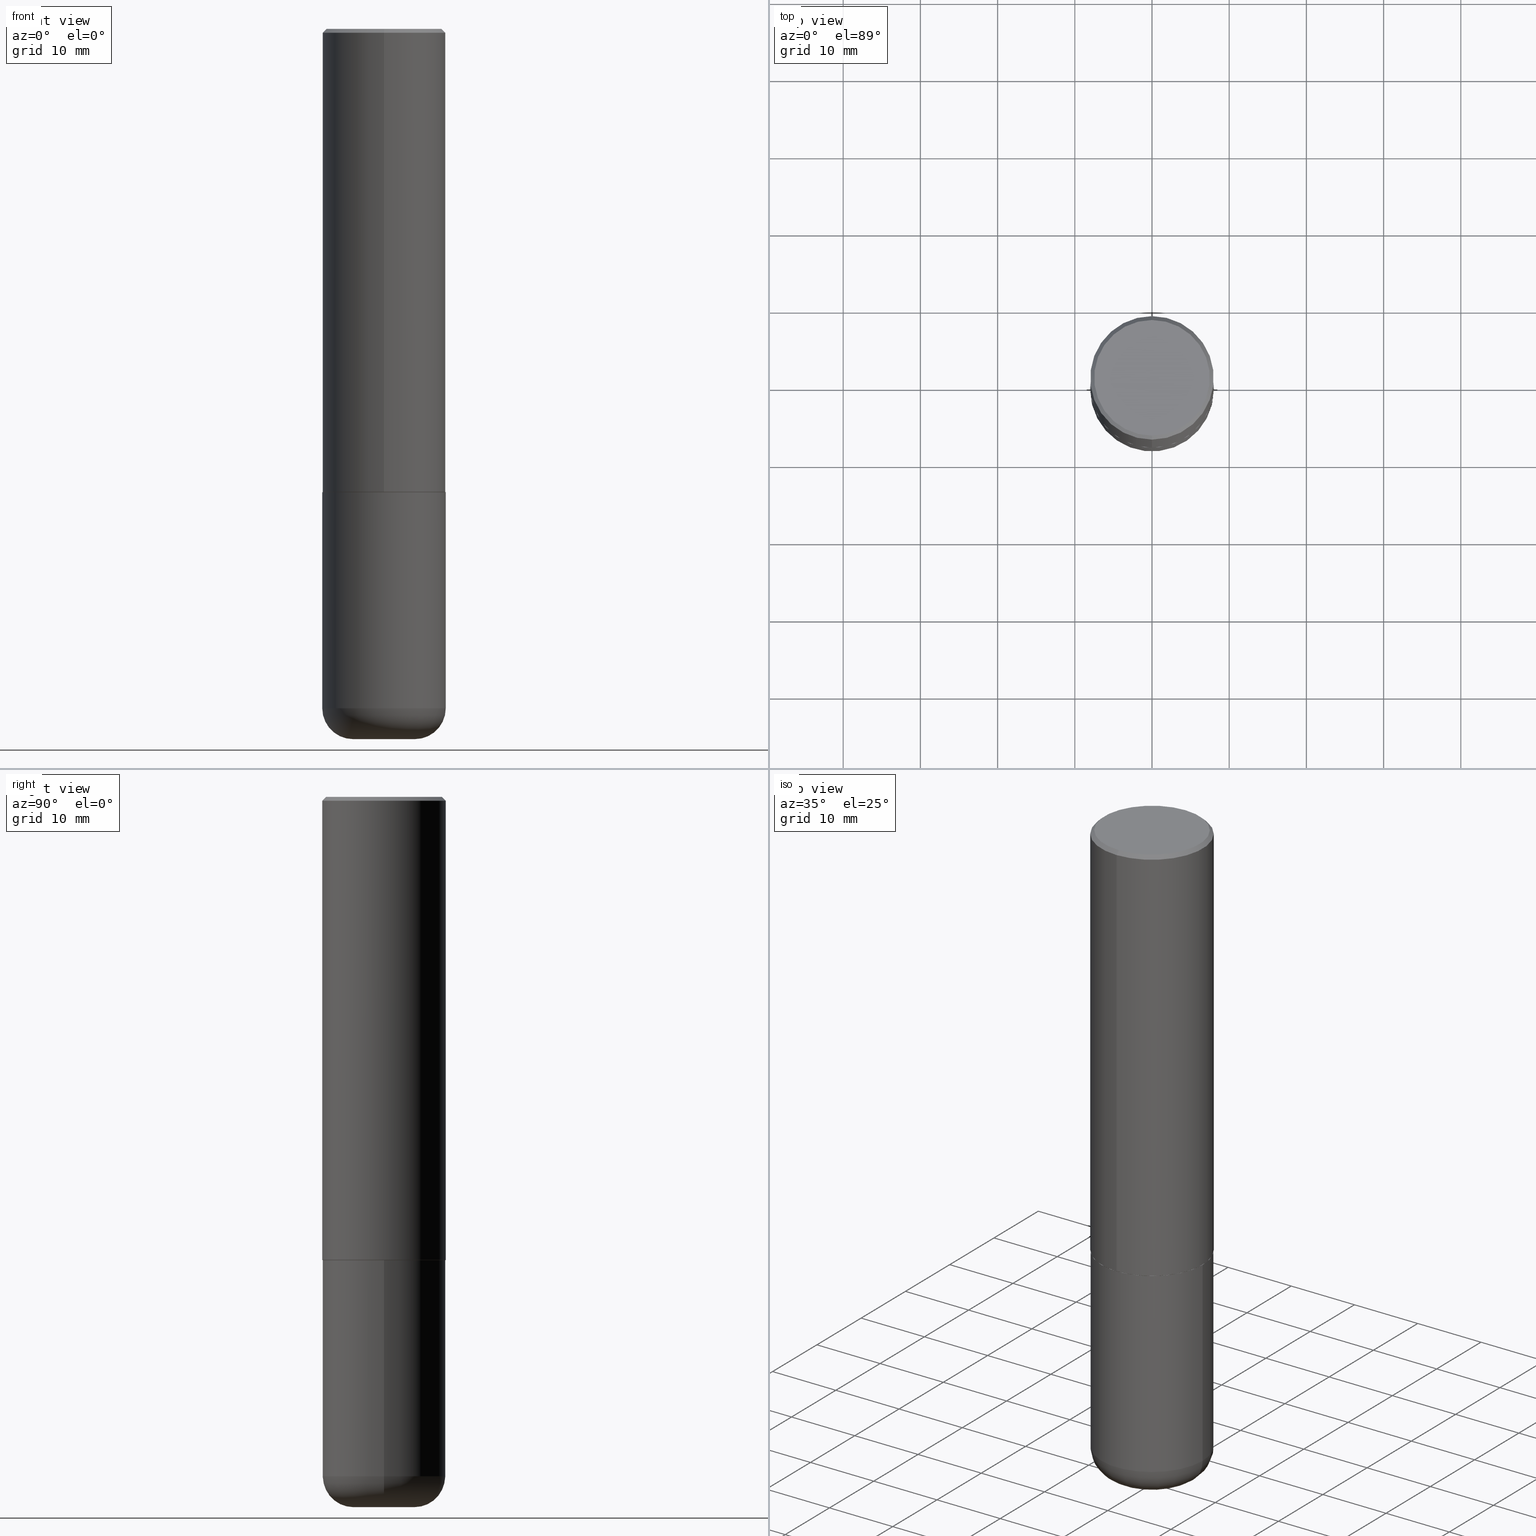
[diagram: canonical four-view strip — front | top / right | iso, engineering-drawing reading convention]
A machine part, canonical four-view strip (front | top / right | iso — engineering-drawing reading convention). The complete STEP part file that produces these views, byte-faithful:
ISO-10303-21;
HEADER;
FILE_DESCRIPTION (( 'STEP AP203' ),
    '1' );
FILE_NAME ('45182.STEP',
    '2024-03-04T16:22:10',
    ( '' ),
    ( '' ),
    'SwSTEP 2.0',
    'SolidWorks 2023',
    '' );
FILE_SCHEMA (( 'CONFIG_CONTROL_DESIGN' ));
ENDSEC;

DATA;
#1 = MANIFOLD_SOLID_BREP ( 'Body-Move/Copy2[2]', #44 ) ;
#2 = FACE_OUTER_BOUND ( 'NONE', #407, .T. ) ;
#3 = VECTOR ( 'NONE', #214, 39.37007874015748143 ) ;
#4 = LOCAL_TIME ( 11, 22, 10.00000000000000000, #334 ) ;
#5 = CARTESIAN_POINT ( 'NONE',  ( -2.092108864420428426E-15, -0.2949500000000001565, 8.537362456613256939E-16 ) ) ;
#6 = EDGE_CURVE ( 'NONE', #140, #56, #167, .T. ) ;
#7 = LINE ( 'NONE', #360, #264 ) ;
#8 = AXIS2_PLACEMENT_3D ( 'NONE', #24, #405, #15 ) ;
#9 = CARTESIAN_POINT ( 'NONE',  ( 8.857488016002565597E-29, -1.264614540928987357E-14, -3.622000000000000330 ) ) ;
#10 = CYLINDRICAL_SURFACE ( 'NONE', #314, 0.3149500000000000077 ) ;
#11 = VERTEX_POINT ( 'NONE', #57 ) ;
#12 = ADVANCED_FACE ( 'NONE', ( #184 ), #278, .T. ) ;
#13 =( NAMED_UNIT ( * ) SI_UNIT ( $, .STERADIAN. ) SOLID_ANGLE_UNIT ( ) );
#14 = ORIENTED_EDGE ( 'NONE', *, *, #6, .T. ) ;
#15 = DIRECTION ( 'NONE',  ( 6.982962677686265922E-15, 1.000000000000000000, -3.483117034309591132E-15 ) ) ;
#16 = CIRCLE ( 'NONE', #168, 0.3149500000000000077 ) ;
#17 = DIRECTION ( 'NONE',  ( -6.982962677686265922E-15, -1.000000000000000000, 3.469564049740290009E-15 ) ) ;
#18 = COORDINATED_UNIVERSAL_TIME_OFFSET ( 5, 0, .BEHIND. ) ;
#19 = CC_DESIGN_PERSON_AND_ORGANIZATION_ASSIGNMENT ( #367, #82, ( #395 ) ) ;
#20 = DIRECTION ( 'NONE',  ( -2.446732064424175452E-29, 3.489672281144647968E-15, 1.000000000000000000 ) ) ;
#21 = ADVANCED_BREP_SHAPE_REPRESENTATION ( '45182', ( #287, #1, #389 ), #45 ) ;
#22 = PERSON_AND_ORGANIZATION_ROLE ( 'design_supplier' ) ;
#23 = ORIENTED_EDGE ( 'NONE', *, *, #390, .T. ) ;
#24 = CARTESIAN_POINT ( 'NONE',  ( 4.893464128848368385E-31, -6.979344562289319109E-17, -0.02000000000000006981 ) ) ;
#25 = VERTEX_POINT ( 'NONE', #310 ) ;
#26 = VECTOR ( 'NONE', #355, 39.37007874015748143 ) ;
#27 = APPROVAL_PERSON_ORGANIZATION ( #378, #163, #211 ) ;
#28 = COORDINATED_UNIVERSAL_TIME_OFFSET ( 5, 0, .BEHIND. ) ;
#29 = DIRECTION ( 'NONE',  ( -6.982962677686265922E-15, -1.000000000000000000, 3.489672281144648363E-15 ) ) ;
#30 = DIMENSIONAL_EXPONENTS ( 1.000000000000000000, 0.000000000000000000, 0.000000000000000000, 0.000000000000000000, 0.000000000000000000, 0.000000000000000000, 0.000000000000000000 ) ;
#31 = EDGE_CURVE ( 'NONE', #241, #165, #238, .T. ) ;
#32 = DIRECTION ( 'NONE',  ( -6.982962677686264344E-15, -1.000000000000000000, 3.489672281144647968E-15 ) ) ;
#33 = DATE_TIME_ROLE ( 'classification_date' ) ;
#34 = FACE_OUTER_BOUND ( 'NONE', #118, .T. ) ;
#35 = VECTOR ( 'NONE', #361, 39.37007874015748143 ) ;
#36 = DIRECTION ( 'NONE',  ( 2.446732064424175452E-29, -3.489672281144647968E-15, -1.000000000000000000 ) ) ;
#37 = EDGE_CURVE ( 'NONE', #51, #345, #66, .T. ) ;
#38 = ORIENTED_EDGE ( 'NONE', *, *, #390, .F. ) ;
#39 = CARTESIAN_POINT ( 'NONE',  ( 4.893464128848368385E-31, -6.979344562289319109E-17, -0.02000000000000006981 ) ) ;
#40 = CARTESIAN_POINT ( 'NONE',  ( 0.000000000000000000, 0.000000000000000000, 0.000000000000000000 ) ) ;
#41 = DIRECTION ( 'NONE',  ( -2.445468806185136597E-29, 3.491481338843145583E-15, 1.000000000000000000 ) ) ;
#42 = DIRECTION ( 'NONE',  ( -1.000000000000000000, 6.982962677686265922E-15, -4.876176775795935793E-29 ) ) ;
#43 = DIRECTION ( 'NONE',  ( 1.000000000000000000, -6.982962677686266711E-15, 0.000000000000000000 ) ) ;
#44 = CLOSED_SHELL ( 'NONE', ( #229, #218, #402, #92, #172, #12, #260, #333 ) ) ;
#45 =( GEOMETRIC_REPRESENTATION_CONTEXT ( 3 ) GLOBAL_UNCERTAINTY_ASSIGNED_CONTEXT ( ( #90 ) ) GLOBAL_UNIT_ASSIGNED_CONTEXT ( ( #376, #205, #13 ) ) REPRESENTATION_CONTEXT ( 'NONE', 'WORKASPACE' ) );
#46 = DIRECTION ( 'NONE',  ( -2.446732064424174891E-29, 3.489672281144648363E-15, 1.000000000000000000 ) ) ;
#47 = ORIENTED_EDGE ( 'NONE', *, *, #128, .F. ) ;
#48 = EDGE_CURVE ( 'NONE', #165, #241, #99, .T. ) ;
#49 = CARTESIAN_POINT ( 'NONE',  ( 0.3149500000000000077, -2.199284095337289871E-15, 1.535751875536930130E-29 ) ) ;
#50 = APPLICATION_PROTOCOL_DEFINITION ( 'international standard', 'config_control_design', 1994, #255 ) ;
#51 = VERTEX_POINT ( 'NONE', #380 ) ;
#52 = EDGE_CURVE ( 'NONE', #345, #81, #159, .T. ) ;
#53 = AXIS2_PLACEMENT_3D ( 'NONE', #9, #105, #364 ) ;
#54 = CARTESIAN_POINT ( 'NONE',  ( 4.295056925857058757E-45, -6.125861232635271610E-31, -1.755425936622887402E-16 ) ) ;
#55 = APPROVAL_DATE_TIME ( #341, #147 ) ;
#56 = VERTEX_POINT ( 'NONE', #384 ) ;
#57 = CARTESIAN_POINT ( 'NONE',  ( 0.3149500000000002298, -1.429552119375936694E-14, -3.464499999999999691 ) ) ;
#58 = CIRCLE ( 'NONE', #358, 0.1575000000000003897 ) ;
#59 = ORIENTED_EDGE ( 'NONE', *, *, #272, .T. ) ;
#60 = CIRCLE ( 'NONE', #239, 0.3139500000000000068 ) ;
#61 = EDGE_CURVE ( 'NONE', #81, #200, #331, .T. ) ;
#62 = FACE_OUTER_BOUND ( 'NONE', #368, .T. ) ;
#63 = APPROVAL_STATUS ( 'not_yet_approved' ) ;
#64 = CARTESIAN_POINT ( 'NONE',  ( 0.000000000000000000, 0.000000000000000000, 0.000000000000000000 ) ) ;
#65 = CARTESIAN_POINT ( 'NONE',  ( 0.1574500000000000621, -1.374561288289157675E-14, -3.622000000000000330 ) ) ;
#66 = CIRCLE ( 'NONE', #305, 0.3149500000000002853 ) ;
#67 = AXIS2_PLACEMENT_3D ( 'NONE', #253, #96, #216 ) ;
#68 = CARTESIAN_POINT ( 'NONE',  ( 8.472326679028403758E-29, -1.209623709842207707E-14, -3.464499999999999691 ) ) ;
#69 = ORIENTED_EDGE ( 'NONE', *, *, #381, .F. ) ;
#70 = DIRECTION ( 'NONE',  ( -6.982962677686265922E-15, -1.000000000000000000, 3.483117034309591132E-15 ) ) ;
#71 = ADVANCED_FACE ( 'NONE', ( #193 ), #130, .T. ) ;
#72 = DIRECTION ( 'NONE',  ( 7.105427357601001859E-15, 1.000000000000000000, -3.491481338843145583E-15 ) ) ;
#73 = AXIS2_PLACEMENT_3D ( 'NONE', #54, #206, #29 ) ;
#74 = TOROIDAL_SURFACE ( 'NONE', #306, 0.1574500000000000066, 0.1575000000000003619 ) ;
#75 = DIRECTION ( 'NONE',  ( -2.446732064424175452E-29, 3.489672281144648363E-15, 1.000000000000000000 ) ) ;
#76 = DIRECTION ( 'NONE',  ( -6.982962677686265922E-15, -1.000000000000000000, 3.483117034309591132E-15 ) ) ;
#77 = CC_DESIGN_PERSON_AND_ORGANIZATION_ASSIGNMENT ( #179, #309, ( #111 ) ) ;
#78 = FACE_OUTER_BOUND ( 'NONE', #174, .T. ) ;
#79 = CONICAL_SURFACE ( 'NONE', #104, 0.3139500000000000068, 0.7853981633975507526 ) ;
#80 = DIRECTION ( 'NONE',  ( -2.445468806185136877E-29, 3.491481338843145188E-15, 1.000000000000000000 ) ) ;
#81 = VERTEX_POINT ( 'NONE', #291 ) ;
#82 = PERSON_AND_ORGANIZATION_ROLE ( 'creator' ) ;
#83 = ORIENTED_EDGE ( 'NONE', *, *, #272, .F. ) ;
#84 = ADVANCED_FACE ( 'NONE', ( #353 ), #323, .F. ) ;
#85 = DIRECTION ( 'NONE',  ( 0.000000000000000000, 0.000000000000000000, 1.000000000000000000 ) ) ;
#86 = DIRECTION ( 'NONE',  ( -6.982962677686266711E-15, -1.000000000000000000, 3.480615376543096919E-15 ) ) ;
#87 = CLOSED_SHELL ( 'NONE', ( #71, #106, #84, #236, #356, #344 ) ) ;
#88 = DIRECTION ( 'NONE',  ( 1.000000000000000000, 0.000000000000000000, 0.000000000000000000 ) ) ;
#89 = CONICAL_SURFACE ( 'NONE', #8, 0.3149500000000000077, 0.7853981633974473908 ) ;
#90 = UNCERTAINTY_MEASURE_WITH_UNIT (LENGTH_MEASURE( 1.000000000000000082E-05 ), #376, 'distance_accuracy_value', 'NONE');
#91 = ORIENTED_EDGE ( 'NONE', *, *, #302, .T. ) ;
#92 = ADVANCED_FACE ( 'NONE', ( #34 ), #388, .T. ) ;
#93 = ORIENTED_EDGE ( 'NONE', *, *, #48, .F. ) ;
#94 = DATE_AND_TIME ( #283, #326 ) ;
#95 = DIRECTION ( 'NONE',  ( -1.000000000000000000, 6.982962677686265922E-15, -4.876176775795935793E-29 ) ) ;
#96 = DIRECTION ( 'NONE',  ( -2.445468806185136597E-29, 3.491481338843145583E-15, 1.000000000000000000 ) ) ;
#97 = LINE ( 'NONE', #386, #3 ) ;
#98 = DIRECTION ( 'NONE',  ( -6.982962677686264344E-15, -1.000000000000000000, 3.489672281144647968E-15 ) ) ;
#99 = CIRCLE ( 'NONE', #297, 0.2949500000000001565 ) ;
#100 = ORIENTED_EDGE ( 'NONE', *, *, #31, .T. ) ;
#101 = DIRECTION ( 'NONE',  ( -2.445468806185136597E-29, 3.491481338843145583E-15, 1.000000000000000000 ) ) ;
#102 = LINE ( 'NONE', #263, #415 ) ;
#103 = CARTESIAN_POINT ( 'NONE',  ( 5.779670482582787819E-29, -8.243303862519886547E-15, -2.362199999999999633 ) ) ;
#104 = AXIS2_PLACEMENT_3D ( 'NONE', #189, #288, #418 ) ;
#105 = DIRECTION ( 'NONE',  ( -2.445468806185136597E-29, 3.491481338843145583E-15, 1.000000000000000000 ) ) ;
#106 = ADVANCED_FACE ( 'NONE', ( #2 ), #231, .T. ) ;
#107 = DIRECTION ( 'NONE',  ( 6.982962677686265922E-15, 1.000000000000000000, -3.489672281144648363E-15 ) ) ;
#108 = ORIENTED_EDGE ( 'NONE', *, *, #31, .F. ) ;
#109 = CARTESIAN_POINT ( 'NONE',  ( -0.3149500000000002298, -9.858382752145641082E-15, -3.464499999999999691 ) ) ;
#110 = ORIENTED_EDGE ( 'NONE', *, *, #245, .T. ) ;
#111 = PRODUCT_DEFINITION_FORMATION_WITH_SPECIFIED_SOURCE ( 'ANY', '', #243, .NOT_KNOWN. ) ;
#112 = CALENDAR_DATE ( 2024, 4, 3 ) ;
#113 = ORIENTED_EDGE ( 'NONE', *, *, #282, .T. ) ;
#114 =( LENGTH_UNIT ( ) NAMED_UNIT ( * ) SI_UNIT ( $, .METRE. ) );
#115 = ORIENTED_EDGE ( 'NONE', *, *, #61, .F. ) ;
#116 = APPROVAL ( #63, 'UNSPECIFIED' ) ;
#117 = CALENDAR_DATE ( 2024, 4, 3 ) ;
#118 = EDGE_LOOP ( 'NONE', ( #406, #93, #113, #110 ) ) ;
#119 = AXIS2_PLACEMENT_3D ( 'NONE', #39, #221, #70 ) ;
#120 = CARTESIAN_POINT ( 'NONE',  ( -0.3149500000000000077, -7.934052812242242362E-15, -2.362199999999999633 ) ) ;
#121 = EDGE_LOOP ( 'NONE', ( #377, #275, #151, #363 ) ) ;
#122 = EDGE_LOOP ( 'NONE', ( #83, #399 ) ) ;
#123 = CARTESIAN_POINT ( 'NONE',  ( 0.3149500000000000077, -1.044686131395256792E-14, -2.362199999999999633 ) ) ;
#124 = CC_DESIGN_APPROVAL ( #116, ( #127 ) ) ;
#125 = AXIS2_PLACEMENT_3D ( 'NONE', #40, #348, #293 ) ;
#126 = CARTESIAN_POINT ( 'NONE',  ( 4.893464128848368385E-31, -6.979344562289319109E-17, -0.02000000000000006981 ) ) ;
#127 = SECURITY_CLASSIFICATION ( '', '', #247 ) ;
#128 = EDGE_CURVE ( 'NONE', #242, #51, #219, .T. ) ;
#129 = CARTESIAN_POINT ( 'NONE',  ( 5.776686413970529753E-29, -8.247577218615278049E-15, -2.362199999999999633 ) ) ;
#130 = CYLINDRICAL_SURFACE ( 'NONE', #125, 0.3149500000000000077 ) ;
#131 = EDGE_LOOP ( 'NONE', ( #91, #273 ) ) ;
#132 = CARTESIAN_POINT ( 'NONE',  ( 2.230748918918891775E-15, 0.3139499999999917357, -2.362200000000000966 ) ) ;
#133 = AXIS2_PLACEMENT_3D ( 'NONE', #316, #383, #32 ) ;
#134 = CARTESIAN_POINT ( 'NONE',  ( -0.3149500000000000077, 2.237854346276435590E-15, -1.549218606675782676E-29 ) ) ;
#135 = CARTESIAN_POINT ( 'NONE',  ( 0.000000000000000000, 0.000000000000000000, 0.000000000000000000 ) ) ;
#136 = CARTESIAN_POINT ( 'NONE',  ( 8.472326679028403758E-29, -1.209623709842207707E-14, -3.464499999999999691 ) ) ;
#137 = CIRCLE ( 'NONE', #340, 0.3149500000000000077 ) ;
#138 = LINE ( 'NONE', #49, #292 ) ;
#139 = DIRECTION ( 'NONE',  ( -2.446732064424175452E-29, 3.489672281144647968E-15, 1.000000000000000000 ) ) ;
#140 = VERTEX_POINT ( 'NONE', #65 ) ;
#141 = APPROVAL_PERSON_ORGANIZATION ( #143, #147, #307 ) ;
#142 = CC_DESIGN_DATE_AND_TIME_ASSIGNMENT ( #94, #33, ( #127 ) ) ;
#143 = PERSON_AND_ORGANIZATION ( #251, #191 ) ;
#144 = ORIENTED_EDGE ( 'NONE', *, *, #152, .T. ) ;
#145 = VERTEX_POINT ( 'NONE', #123 ) ;
#146 = ORIENTED_EDGE ( 'NONE', *, *, #313, .F. ) ;
#147 = APPROVAL ( #271, 'UNSPECIFIED' ) ;
#148 = AXIS2_PLACEMENT_3D ( 'NONE', #68, #101, #157 ) ;
#149 = ORIENTED_EDGE ( 'NONE', *, *, #299, .T. ) ;
#150 = DATE_AND_TIME ( #256, #414 ) ;
#151 = ORIENTED_EDGE ( 'NONE', *, *, #160, .T. ) ;
#152 = EDGE_CURVE ( 'NONE', #241, #81, #97, .T. ) ;
#153 = CARTESIAN_POINT ( 'NONE',  ( 5.779670482582787819E-29, -8.243303862519886547E-15, -2.362199999999999633 ) ) ;
#154 = CC_DESIGN_SECURITY_CLASSIFICATION ( #127, ( #111 ) ) ;
#155 = DIRECTION ( 'NONE',  ( 1.000000000000000000, -6.982962677686269077E-15, 0.000000000000000000 ) ) ;
#156 = CIRCLE ( 'NONE', #375, 0.3139500000000000068 ) ;
#157 = DIRECTION ( 'NONE',  ( 1.000000000000000000, -6.982962677686266711E-15, 4.883557194083112901E-29 ) ) ;
#158 = ORIENTED_EDGE ( 'NONE', *, *, #324, .T. ) ;
#159 = LINE ( 'NONE', #391, #365 ) ;
#160 = EDGE_CURVE ( 'NONE', #140, #11, #58, .T. ) ;
#161 = CARTESIAN_POINT ( 'NONE',  ( 2.129454468560427362E-15, 0.2949500000000001565, -1.204821432985903076E-15 ) ) ;
#162 = FACE_OUTER_BOUND ( 'NONE', #122, .T. ) ;
#163 = APPROVAL ( #269, 'UNSPECIFIED' ) ;
#164 = DIRECTION ( 'NONE',  ( 1.000000000000000000, -6.982962677686266711E-15, 4.883557194083112901E-29 ) ) ;
#165 = VERTEX_POINT ( 'NONE', #161 ) ;
#166 = DIRECTION ( 'NONE',  ( -2.446732064424175452E-29, 3.489672281144647968E-15, 1.000000000000000000 ) ) ;
#167 = CIRCLE ( 'NONE', #374, 0.1574500000000000621 ) ;
#168 = AXIS2_PLACEMENT_3D ( 'NONE', #262, #393, #43 ) ;
#169 = CARTESIAN_POINT ( 'NONE',  ( 5.779670482582787819E-29, -8.243303862519886547E-15, -2.362199999999999633 ) ) ;
#170 = ORIENTED_EDGE ( 'NONE', *, *, #37, .F. ) ;
#171 = CARTESIAN_POINT ( 'NONE',  ( 8.472326679028403758E-29, -1.209623709842207707E-14, -3.464499999999999691 ) ) ;
#172 = ADVANCED_FACE ( 'NONE', ( #62 ), #190, .T. ) ;
#173 = LENGTH_MEASURE_WITH_UNIT ( LENGTH_MEASURE( 0.02539999999999999897 ), #114 );
#174 = EDGE_LOOP ( 'NONE', ( #321, #100 ) ) ;
#175 = APPLICATION_CONTEXT ( 'configuration controlled 3d designs of mechanical parts and assemblies' ) ;
#176 = AXIS2_PLACEMENT_3D ( 'NONE', #357, #72, #294 ) ;
#177 = CARTESIAN_POINT ( 'NONE',  ( 8.472326679028403758E-29, -1.209623709842207707E-14, -3.464499999999999691 ) ) ;
#178 = CARTESIAN_POINT ( 'NONE',  ( 4.295056925857058757E-45, -6.125861232635271610E-31, -1.755425936622887402E-16 ) ) ;
#179 = PERSON_AND_ORGANIZATION ( #251, #191 ) ;
#180 = EDGE_CURVE ( 'NONE', #242, #25, #60, .T. ) ;
#181 = ORIENTED_EDGE ( 'NONE', *, *, #412, .F. ) ;
#182 = DIRECTION ( 'NONE',  ( 1.000000000000000000, -6.982962677686263555E-15, 0.000000000000000000 ) ) ;
#183 = DESIGN_CONTEXT ( 'detailed design', #255, 'design' ) ;
#184 = FACE_OUTER_BOUND ( 'NONE', #237, .T. ) ;
#185 = COORDINATED_UNIVERSAL_TIME_OFFSET ( 5, 0, .BEHIND. ) ;
#186 = CIRCLE ( 'NONE', #53, 0.1574500000000000621 ) ;
#187 = ORIENTED_EDGE ( 'NONE', *, *, #245, .F. ) ;
#188 = DIRECTION ( 'NONE',  ( 2.438088387897960049E-29, -3.491481338843145188E-15, -1.000000000000000000 ) ) ;
#189 = CARTESIAN_POINT ( 'NONE',  ( 5.779670482582787819E-29, -8.243303862519886547E-15, -2.362199999999999633 ) ) ;
#190 = CYLINDRICAL_SURFACE ( 'NONE', #133, 0.3149500000000001743 ) ;
#191 = ORGANIZATION ( 'UNSPECIFIED', 'UNSPECIFIED', '' ) ;
#192 = CARTESIAN_POINT ( 'NONE',  ( 0.1574500000000000066, -1.319570457202378025E-14, -3.464499999999999691 ) ) ;
#193 = FACE_OUTER_BOUND ( 'NONE', #212, .T. ) ;
#194 = DIRECTION ( 'NONE',  ( -2.445468806185136597E-29, 3.491481338843145583E-15, 1.000000000000000000 ) ) ;
#195 = AXIS2_PLACEMENT_3D ( 'NONE', #235, #342, #86 ) ;
#196 = AXIS2_PLACEMENT_3D ( 'NONE', #64, #290, #98 ) ;
#197 = EDGE_CURVE ( 'NONE', #413, #145, #259, .T. ) ;
#198 = LINE ( 'NONE', #296, #35 ) ;
#199 = DIRECTION ( 'NONE',  ( -6.982962677686265922E-15, -1.000000000000000000, 3.469564049740290009E-15 ) ) ;
#200 = VERTEX_POINT ( 'NONE', #217 ) ;
#201 = DIRECTION ( 'NONE',  ( -2.445468806185136597E-29, 3.491481338843145583E-15, 1.000000000000000000 ) ) ;
#202 = ORIENTED_EDGE ( 'NONE', *, *, #61, .T. ) ;
#203 = CARTESIAN_POINT ( 'NONE',  ( 5.777223750518362448E-29, -8.239814190238740974E-15, -2.361199999999999743 ) ) ;
#204 = EDGE_LOOP ( 'NONE', ( #59, #301, #336, #38 ) ) ;
#205 =( NAMED_UNIT ( * ) PLANE_ANGLE_UNIT ( ) SI_UNIT ( $, .RADIAN. ) );
#206 = DIRECTION ( 'NONE',  ( -2.446732064424175452E-29, 3.489672281144647968E-15, 1.000000000000000000 ) ) ;
#207 = DATE_AND_TIME ( #117, #4 ) ;
#208 = DIRECTION ( 'NONE',  ( -2.445468806185136597E-29, 3.491481338843145583E-15, 1.000000000000000000 ) ) ;
#209 = CARTESIAN_POINT ( 'NONE',  ( 0.000000000000000000, 0.000000000000000000, 0.000000000000000000 ) ) ;
#210 = ORIENTED_EDGE ( 'NONE', *, *, #52, .T. ) ;
#211 = APPROVAL_ROLE ( '' ) ;
#212 = EDGE_LOOP ( 'NONE', ( #346, #315, #401, #379 ) ) ;
#213 = AXIS2_PLACEMENT_3D ( 'NONE', #362, #295, #42 ) ;
#214 = DIRECTION ( 'NONE',  ( -4.851104656540959542E-15, -0.7071067811865493491, -0.7071067811865457964 ) ) ;
#215 = CC_DESIGN_PERSON_AND_ORGANIZATION_ASSIGNMENT ( #276, #22, ( #111 ) ) ;
#216 = DIRECTION ( 'NONE',  ( 1.000000000000000000, -6.982962677686266711E-15, 0.000000000000000000 ) ) ;
#217 = CARTESIAN_POINT ( 'NONE',  ( 2.199284095337289871E-15, 0.3149499999999999522, -0.02000000000000116615 ) ) ;
#218 = ADVANCED_FACE ( 'NONE', ( #349 ), #350, .T. ) ;
#219 = LINE ( 'NONE', #132, #26 ) ;
#220 = AXIS2_PLACEMENT_3D ( 'NONE', #177, #274, #182 ) ;
#221 = DIRECTION ( 'NONE',  ( -2.446732064424175452E-29, 3.489672281144647968E-15, 1.000000000000000000 ) ) ;
#222 = LINE ( 'NONE', #134, #366 ) ;
#223 = CARTESIAN_POINT ( 'NONE',  ( -2.199284095337233467E-15, -0.3149500000000085564, -2.361199999999998411 ) ) ;
#224 = AXIS2_PLACEMENT_3D ( 'NONE', #225, #267, #107 ) ;
#225 = CARTESIAN_POINT ( 'NONE',  ( 2.059624841783565247E-15, 0.2949500000000001565, -1.117050136154758706E-15 ) ) ;
#226 = ORIENTED_EDGE ( 'NONE', *, *, #6, .F. ) ;
#227 = FACE_OUTER_BOUND ( 'NONE', #397, .T. ) ;
#228 = ORIENTED_EDGE ( 'NONE', *, *, #37, .T. ) ;
#229 = ADVANCED_FACE ( 'NONE', ( #322 ), #79, .T. ) ;
#230 = PLANE ( 'NONE',  #213 ) ;
#231 = TOROIDAL_SURFACE ( 'NONE', #148, 0.1574500000000000066, 0.1575000000000003619 ) ;
#232 = CC_DESIGN_APPROVAL ( #163, ( #395 ) ) ;
#233 = APPROVAL_DATE_TIME ( #311, #163 ) ;
#234 = EDGE_LOOP ( 'NONE', ( #277, #254, #158, #281 ) ) ;
#235 = CARTESIAN_POINT ( 'NONE',  ( 5.779670482582787819E-29, -8.243303862519886547E-15, -2.362199999999999633 ) ) ;
#236 = ADVANCED_FACE ( 'NONE', ( #319 ), #10, .T. ) ;
#237 = EDGE_LOOP ( 'NONE', ( #47, #408, #23, #170 ) ) ;
#238 = CIRCLE ( 'NONE', #73, 0.2949500000000001565 ) ;
#239 = AXIS2_PLACEMENT_3D ( 'NONE', #153, #250, #286 ) ;
#240 = PERSON_AND_ORGANIZATION_ROLE ( 'design_owner' ) ;
#241 = VERTEX_POINT ( 'NONE', #5 ) ;
#242 = VERTEX_POINT ( 'NONE', #325 ) ;
#243 = PRODUCT ( '45182', '45182', '', ( #337 ) ) ;
#244 = APPROVAL_ROLE ( '' ) ;
#245 = EDGE_CURVE ( 'NONE', #200, #81, #137, .T. ) ;
#246 = CC_DESIGN_APPROVAL ( #147, ( #111 ) ) ;
#247 = SECURITY_CLASSIFICATION_LEVEL ( 'unclassified' ) ;
#248 = DIRECTION ( 'NONE',  ( -6.982962677686266711E-15, -1.000000000000000000, 3.491481338843145583E-15 ) ) ;
#249 = CC_DESIGN_PERSON_AND_ORGANIZATION_ASSIGNMENT ( #416, #317, ( #127 ) ) ;
#250 = DIRECTION ( 'NONE',  ( -2.446732064424175452E-29, 3.489672281144647968E-15, 1.000000000000000000 ) ) ;
#251 = PERSON ( 'UNSPECIFIED', 'UNSPECIFIED', 'UNSPECIFIED', ('UNSPECIFIED'), ('UNSPECIFIED'), ('UNSPECIFIED') ) ;
#252 = EDGE_CURVE ( 'NONE', #339, #413, #222, .T. ) ;
#253 = CARTESIAN_POINT ( 'NONE',  ( 5.776686413970529753E-29, -8.247577218615278049E-15, -2.362199999999999633 ) ) ;
#254 = ORIENTED_EDGE ( 'NONE', *, *, #318, .T. ) ;
#255 = APPLICATION_CONTEXT ( 'configuration controlled 3d designs of mechanical parts and assemblies' ) ;
#256 = CALENDAR_DATE ( 2024, 4, 3 ) ;
#257 = AXIS2_PLACEMENT_3D ( 'NONE', #126, #36, #320 ) ;
#258 = DIRECTION ( 'NONE',  ( -2.446732064424175452E-29, 3.489672281144648363E-15, 1.000000000000000000 ) ) ;
#259 = CIRCLE ( 'NONE', #67, 0.3149500000000000077 ) ;
#260 = ADVANCED_FACE ( 'NONE', ( #162 ), #261, .F. ) ;
#261 = PLANE ( 'NONE',  #351 ) ;
#262 = CARTESIAN_POINT ( 'NONE',  ( 5.776686413970529753E-29, -8.247577218615278049E-15, -2.362199999999999633 ) ) ;
#263 = CARTESIAN_POINT ( 'NONE',  ( 2.199284095337289871E-15, 0.3149499999999999522, -0.02000000000000116615 ) ) ;
#264 = VECTOR ( 'NONE', #75, 39.37007874015748143 ) ;
#265 = DIRECTION ( 'NONE',  ( -2.445468806185136877E-29, 3.491481338843145188E-15, 1.000000000000000000 ) ) ;
#266 = CC_DESIGN_PERSON_AND_ORGANIZATION_ASSIGNMENT ( #343, #240, ( #243 ) ) ;
#267 = DIRECTION ( 'NONE',  ( 2.446732064424174891E-29, -3.489672281144648363E-15, -1.000000000000000000 ) ) ;
#268 = ORIENTED_EDGE ( 'NONE', *, *, #160, .F. ) ;
#269 = APPROVAL_STATUS ( 'not_yet_approved' ) ;
#270 = AXIS2_PLACEMENT_3D ( 'NONE', #136, #41, #332 ) ;
#271 = APPROVAL_STATUS ( 'not_yet_approved' ) ;
#272 = EDGE_CURVE ( 'NONE', #25, #242, #156, .T. ) ;
#273 = ORIENTED_EDGE ( 'NONE', *, *, #197, .T. ) ;
#274 = DIRECTION ( 'NONE',  ( -2.445468806185136597E-29, 3.491481338843145583E-15, 1.000000000000000000 ) ) ;
#275 = ORIENTED_EDGE ( 'NONE', *, *, #313, .T. ) ;
#276 = PERSON_AND_ORGANIZATION ( #251, #191 ) ;
#277 = ORIENTED_EDGE ( 'NONE', *, *, #252, .F. ) ;
#278 = CONICAL_SURFACE ( 'NONE', #195, 0.3139500000000000068, 0.7853981633975507526 ) ;
#279 = LOCAL_TIME ( 11, 22, 10.00000000000000000, #403 ) ;
#280 = FACE_OUTER_BOUND ( 'NONE', #373, .T. ) ;
#281 = ORIENTED_EDGE ( 'NONE', *, *, #197, .F. ) ;
#282 = EDGE_CURVE ( 'NONE', #165, #200, #102, .T. ) ;
#283 = CALENDAR_DATE ( 2024, 4, 3 ) ;
#284 = ORIENTED_EDGE ( 'NONE', *, *, #369, .T. ) ;
#285 = SHAPE_DEFINITION_REPRESENTATION ( #335, #21 ) ;
#286 = DIRECTION ( 'NONE',  ( -6.982962677686266711E-15, -1.000000000000000000, 3.480615376543096919E-15 ) ) ;
#287 = MANIFOLD_SOLID_BREP ( 'Body-Move/Copy2[1]', #87 ) ;
#288 = DIRECTION ( 'NONE',  ( -2.446732064424175452E-29, 3.489672281144647968E-15, 1.000000000000000000 ) ) ;
#289 = CC_DESIGN_DATE_AND_TIME_ASSIGNMENT ( #207, #303, ( #395 ) ) ;
#290 = DIRECTION ( 'NONE',  ( -2.446732064424175452E-29, 3.489672281144647968E-15, 1.000000000000000000 ) ) ;
#291 = CARTESIAN_POINT ( 'NONE',  ( -2.160713844398143363E-15, -0.3149500000000000632, -0.01999999999999896999 ) ) ;
#292 = VECTOR ( 'NONE', #265, 39.37007874015748143 ) ;
#293 = DIRECTION ( 'NONE',  ( 1.000000000000000000, -6.982962677686266711E-15, 4.876176775795936353E-29 ) ) ;
#294 = DIRECTION ( 'NONE',  ( -1.000000000000000000, 7.105427357601005014E-15, 0.000000000000000000 ) ) ;
#295 = DIRECTION ( 'NONE',  ( 2.438088387897960049E-29, -3.491481338843145188E-15, -1.000000000000000000 ) ) ;
#296 = CARTESIAN_POINT ( 'NONE',  ( -2.192301132659545875E-15, -0.3139500000000082780, -2.362199999999998745 ) ) ;
#297 = AXIS2_PLACEMENT_3D ( 'NONE', #178, #20, #417 ) ;
#298 = AXIS2_PLACEMENT_3D ( 'NONE', #203, #166, #199 ) ;
#299 = EDGE_CURVE ( 'NONE', #345, #51, #404, .T. ) ;
#300 = DIRECTION ( 'NONE',  ( -6.982962677686265922E-15, -1.000000000000000000, 3.489672281144648363E-15 ) ) ;
#301 = ORIENTED_EDGE ( 'NONE', *, *, #128, .T. ) ;
#302 = EDGE_CURVE ( 'NONE', #145, #413, #16, .T. ) ;
#303 = DATE_TIME_ROLE ( 'creation_date' ) ;
#304 = DIRECTION ( 'NONE',  ( -2.446732064424175452E-29, 3.489672281144647968E-15, 1.000000000000000000 ) ) ;
#305 = AXIS2_PLACEMENT_3D ( 'NONE', #312, #304, #17 ) ;
#306 = AXIS2_PLACEMENT_3D ( 'NONE', #171, #201, #164 ) ;
#307 = APPROVAL_ROLE ( '' ) ;
#308 = DIRECTION ( 'NONE',  ( 1.000000000000000000, -6.982962677686263555E-15, 0.000000000000000000 ) ) ;
#309 = PERSON_AND_ORGANIZATION_ROLE ( 'creator' ) ;
#310 = CARTESIAN_POINT ( 'NONE',  ( -2.192301132659545875E-15, -0.3139500000000082780, -2.362199999999998745 ) ) ;
#311 = DATE_AND_TIME ( #112, #279 ) ;
#312 = CARTESIAN_POINT ( 'NONE',  ( 5.777223750518362448E-29, -8.239814190238740974E-15, -2.361199999999999743 ) ) ;
#313 = EDGE_CURVE ( 'NONE', #56, #140, #186, .T. ) ;
#314 = AXIS2_PLACEMENT_3D ( 'NONE', #135, #194, #329 ) ;
#315 = ORIENTED_EDGE ( 'NONE', *, *, #252, .T. ) ;
#316 = CARTESIAN_POINT ( 'NONE',  ( 0.000000000000000000, 0.000000000000000000, 0.000000000000000000 ) ) ;
#317 = PERSON_AND_ORGANIZATION_ROLE ( 'classification_officer' ) ;
#318 = EDGE_CURVE ( 'NONE', #339, #11, #347, .T. ) ;
#319 = FACE_OUTER_BOUND ( 'NONE', #234, .T. ) ;
#320 = DIRECTION ( 'NONE',  ( 6.982962677686265922E-15, 1.000000000000000000, -3.483117034309591132E-15 ) ) ;
#321 = ORIENTED_EDGE ( 'NONE', *, *, #48, .T. ) ;
#322 = FACE_OUTER_BOUND ( 'NONE', #204, .T. ) ;
#323 = PLANE ( 'NONE',  #409 ) ;
#324 = EDGE_CURVE ( 'NONE', #11, #145, #138, .T. ) ;
#325 = CARTESIAN_POINT ( 'NONE',  ( 2.234301632597693067E-15, 0.3139499999999917357, -2.362200000000000966 ) ) ;
#326 = LOCAL_TIME ( 11, 22, 10.00000000000000000, #185 ) ;
#327 = CARTESIAN_POINT ( 'NONE',  ( 4.893464128848368385E-31, -6.979344562289319109E-17, -0.02000000000000006981 ) ) ;
#328 = ORIENTED_EDGE ( 'NONE', *, *, #282, .F. ) ;
#329 = DIRECTION ( 'NONE',  ( 1.000000000000000000, -6.982962677686266711E-15, 4.876176775795936353E-29 ) ) ;
#330 = DIRECTION ( 'NONE',  ( -2.446732064424175452E-29, 3.489672281144647968E-15, 1.000000000000000000 ) ) ;
#331 = CIRCLE ( 'NONE', #119, 0.3149500000000000077 ) ;
#332 = DIRECTION ( 'NONE',  ( 1.000000000000000000, -6.982962677686263555E-15, 0.000000000000000000 ) ) ;
#333 = ADVANCED_FACE ( 'NONE', ( #78 ), #400, .F. ) ;
#334 = COORDINATED_UNIVERSAL_TIME_OFFSET ( 5, 0, .BEHIND. ) ;
#335 = PRODUCT_DEFINITION_SHAPE ( 'NONE', 'NONE',  #395 ) ;
#336 = ORIENTED_EDGE ( 'NONE', *, *, #299, .F. ) ;
#337 = MECHANICAL_CONTEXT ( 'NONE', #175, 'mechanical' ) ;
#338 = APPROVAL_PERSON_ORGANIZATION ( #385, #116, #244 ) ;
#339 = VERTEX_POINT ( 'NONE', #109 ) ;
#340 = AXIS2_PLACEMENT_3D ( 'NONE', #327, #139, #76 ) ;
#341 = DATE_AND_TIME ( #372, #382 ) ;
#342 = DIRECTION ( 'NONE',  ( -2.446732064424175452E-29, 3.489672281144647968E-15, 1.000000000000000000 ) ) ;
#343 = PERSON_AND_ORGANIZATION ( #251, #191 ) ;
#344 = ADVANCED_FACE ( 'NONE', ( #227 ), #230, .T. ) ;
#345 = VERTEX_POINT ( 'NONE', #223 ) ;
#346 = ORIENTED_EDGE ( 'NONE', *, *, #412, .T. ) ;
#347 = CIRCLE ( 'NONE', #270, 0.3149500000000000077 ) ;
#348 = DIRECTION ( 'NONE',  ( -2.445468806185136597E-29, 3.491481338843145583E-15, 1.000000000000000000 ) ) ;
#349 = FACE_OUTER_BOUND ( 'NONE', #387, .T. ) ;
#350 = CYLINDRICAL_SURFACE ( 'NONE', #196, 0.3149500000000001743 ) ;
#351 = AXIS2_PLACEMENT_3D ( 'NONE', #169, #46, #300 ) ;
#352 = APPROVAL_DATE_TIME ( #150, #116 ) ;
#353 = FACE_OUTER_BOUND ( 'NONE', #131, .T. ) ;
#354 = ORIENTED_EDGE ( 'NONE', *, *, #381, .T. ) ;
#355 = DIRECTION ( 'NONE',  ( 5.024295867788576727E-15, 0.7071067811866224018, 0.7071067811864726327 ) ) ;
#356 = ADVANCED_FACE ( 'NONE', ( #392 ), #74, .T. ) ;
#357 = CARTESIAN_POINT ( 'NONE',  ( -0.1574500000000000066, -1.097748756096779869E-14, -3.464499999999999691 ) ) ;
#358 = AXIS2_PLACEMENT_3D ( 'NONE', #192, #248, #155 ) ;
#359 = CIRCLE ( 'NONE', #220, 0.3149500000000000077 ) ;
#360 = CARTESIAN_POINT ( 'NONE',  ( 2.237854346276435985E-15, 0.3149500000000001743, -1.099072284946507453E-15 ) ) ;
#361 = DIRECTION ( 'NONE',  ( -4.937700262165053702E-15, -0.7071067811866175168, 0.7071067811864775177 ) ) ;
#362 = CARTESIAN_POINT ( 'NONE',  ( 8.077236939603735419E-31, -2.521490175486238405E-14, -3.621999999999999886 ) ) ;
#363 = ORIENTED_EDGE ( 'NONE', *, *, #318, .F. ) ;
#364 = DIRECTION ( 'NONE',  ( 1.000000000000000000, -6.982962677686263555E-15, 0.000000000000000000 ) ) ;
#365 = VECTOR ( 'NONE', #258, 39.37007874015748143 ) ;
#366 = VECTOR ( 'NONE', #80, 39.37007874015748143 ) ;
#367 = PERSON_AND_ORGANIZATION ( #251, #191 ) ;
#368 = EDGE_LOOP ( 'NONE', ( #69, #228, #210, #187 ) ) ;
#369 = EDGE_CURVE ( 'NONE', #56, #339, #410, .T. ) ;
#370 = APPLICATION_PROTOCOL_DEFINITION ( 'international standard', 'config_control_design', 1994, #175 ) ;
#371 = CARTESIAN_POINT ( 'NONE',  ( 8.857488016002565597E-29, -1.264614540928987357E-14, -3.622000000000000330 ) ) ;
#372 = CALENDAR_DATE ( 2024, 4, 3 ) ;
#373 = EDGE_LOOP ( 'NONE', ( #108, #144, #202, #328 ) ) ;
#374 = AXIS2_PLACEMENT_3D ( 'NONE', #371, #208, #308 ) ;
#375 = AXIS2_PLACEMENT_3D ( 'NONE', #103, #330, #398 ) ;
#376 =( CONVERSION_BASED_UNIT ( 'INCH', #173 ) LENGTH_UNIT ( ) NAMED_UNIT ( #30 ) );
#377 = ORIENTED_EDGE ( 'NONE', *, *, #369, .F. ) ;
#378 = PERSON_AND_ORGANIZATION ( #251, #191 ) ;
#379 = ORIENTED_EDGE ( 'NONE', *, *, #324, .F. ) ;
#380 = CARTESIAN_POINT ( 'NONE',  ( 2.237854346276465567E-15, 0.3149499999999920141, -2.361200000000000632 ) ) ;
#381 = EDGE_CURVE ( 'NONE', #51, #200, #7, .T. ) ;
#382 = LOCAL_TIME ( 11, 22, 10.00000000000000000, #18 ) ;
#383 = DIRECTION ( 'NONE',  ( -2.446732064424175452E-29, 3.489672281144647968E-15, 1.000000000000000000 ) ) ;
#384 = CARTESIAN_POINT ( 'NONE',  ( -0.1574500000000000621, -1.069288931199061971E-14, -3.622000000000000330 ) ) ;
#385 = PERSON_AND_ORGANIZATION ( #251, #191 ) ;
#386 = CARTESIAN_POINT ( 'NONE',  ( -2.160713844398143363E-15, -0.3149500000000000632, -0.01999999999999896999 ) ) ;
#387 = EDGE_LOOP ( 'NONE', ( #149, #354, #115, #411 ) ) ;
#388 = CONICAL_SURFACE ( 'NONE', #257, 0.3149500000000000077, 0.7853981633974473908 ) ;
#389 = AXIS2_PLACEMENT_3D ( 'NONE', #209, #85, #88 ) ;
#390 = EDGE_CURVE ( 'NONE', #25, #345, #198, .T. ) ;
#391 = CARTESIAN_POINT ( 'NONE',  ( -2.199284095337290265E-15, -0.3149500000000001743, 1.099072284946507453E-15 ) ) ;
#392 = FACE_OUTER_BOUND ( 'NONE', #121, .T. ) ;
#393 = DIRECTION ( 'NONE',  ( -2.445468806185136597E-29, 3.491481338843145583E-15, 1.000000000000000000 ) ) ;
#394 = PRODUCT_RELATED_PRODUCT_CATEGORY ( 'detail', '', ( #243 ) ) ;
#395 = PRODUCT_DEFINITION ( 'UNKNOWN', '', #111, #183 ) ;
#396 = DIRECTION ( 'NONE',  ( 4.937700262164543309E-15, 0.7071067811865444641, -0.7071067811865506814 ) ) ;
#397 = EDGE_LOOP ( 'NONE', ( #226, #146 ) ) ;
#398 = DIRECTION ( 'NONE',  ( -6.982962677686266711E-15, -1.000000000000000000, 3.480615376543096919E-15 ) ) ;
#399 = ORIENTED_EDGE ( 'NONE', *, *, #180, .F. ) ;
#400 = PLANE ( 'NONE',  #224 ) ;
#401 = ORIENTED_EDGE ( 'NONE', *, *, #302, .F. ) ;
#402 = ADVANCED_FACE ( 'NONE', ( #280 ), #89, .T. ) ;
#403 = COORDINATED_UNIVERSAL_TIME_OFFSET ( 5, 0, .BEHIND. ) ;
#404 = CIRCLE ( 'NONE', #298, 0.3149500000000002853 ) ;
#405 = DIRECTION ( 'NONE',  ( 2.446732064424175452E-29, -3.489672281144647968E-15, -1.000000000000000000 ) ) ;
#406 = ORIENTED_EDGE ( 'NONE', *, *, #152, .F. ) ;
#407 = EDGE_LOOP ( 'NONE', ( #14, #284, #181, #268 ) ) ;
#408 = ORIENTED_EDGE ( 'NONE', *, *, #180, .T. ) ;
#409 = AXIS2_PLACEMENT_3D ( 'NONE', #129, #188, #95 ) ;
#410 = CIRCLE ( 'NONE', #176, 0.1575000000000003897 ) ;
#411 = ORIENTED_EDGE ( 'NONE', *, *, #52, .F. ) ;
#412 = EDGE_CURVE ( 'NONE', #11, #339, #359, .T. ) ;
#413 = VERTEX_POINT ( 'NONE', #120 ) ;
#414 = LOCAL_TIME ( 11, 22, 10.00000000000000000, #28 ) ;
#415 = VECTOR ( 'NONE', #396, 39.37007874015748143 ) ;
#416 = PERSON_AND_ORGANIZATION ( #251, #191 ) ;
#417 = DIRECTION ( 'NONE',  ( -6.982962677686265922E-15, -1.000000000000000000, 3.489672281144648363E-15 ) ) ;
#418 = DIRECTION ( 'NONE',  ( -6.982962677686266711E-15, -1.000000000000000000, 3.480615376543096919E-15 ) ) ;
ENDSEC;
END-ISO-10303-21;
